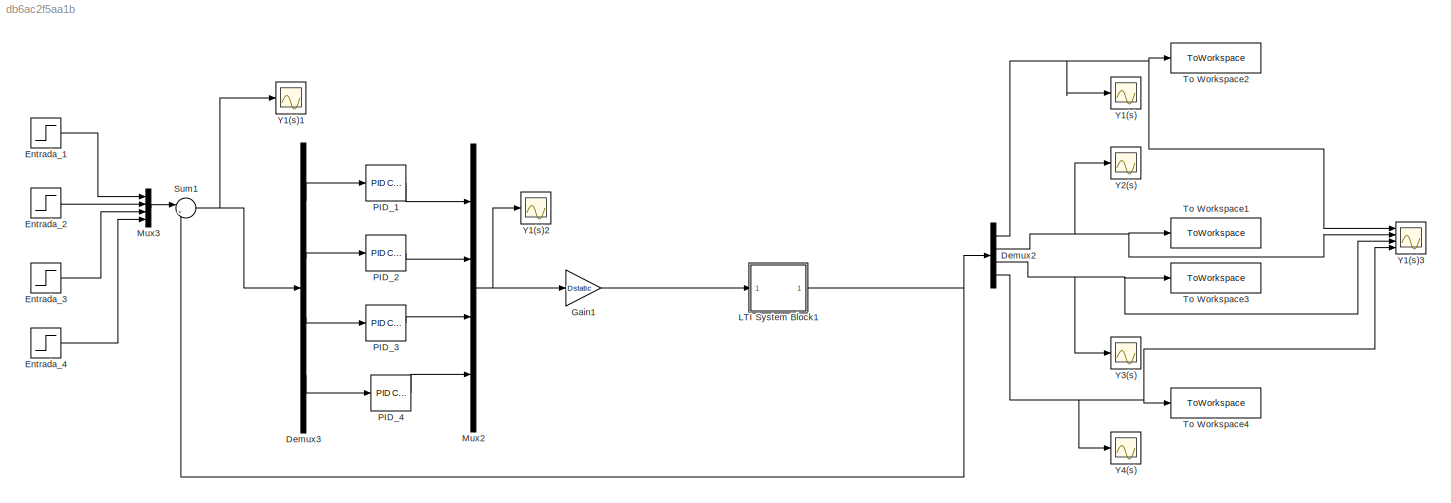
MODEL slx_db6ac2f5aa1b
KIND model
CONFIG AbsTol = auto
CONFIG EnableMultiTasking = off
CONFIG FixedStep = auto
CONFIG MaxStep = auto
CONFIG MinStep = auto
CONFIG RelTol = 1e-3
CONFIG SampleTimeConstraint = Unconstrained
CONFIG SolverName = ode45
CONFIG StartTime = 0.0
CONFIG StopTime = 1000
WORKSPACE source: mxarray member
WORKSPACE Gm: object (value not decoded)
BLOCK [Demux] Demux2
  Ports = [1, 4]
BLOCK [Demux] Demux3
  Ports = [1, 4]
BLOCK [Step] Entrada_1
  SampleTime = 0
BLOCK [Step] Entrada_2
  SampleTime = 0
BLOCK [Step] Entrada_3
  SampleTime = 0
BLOCK [Step] Entrada_4
  SampleTime = 0
BLOCK [Gain] Gain1
  Gain = Dstatic
  Multiplication = Matrix(K*u)
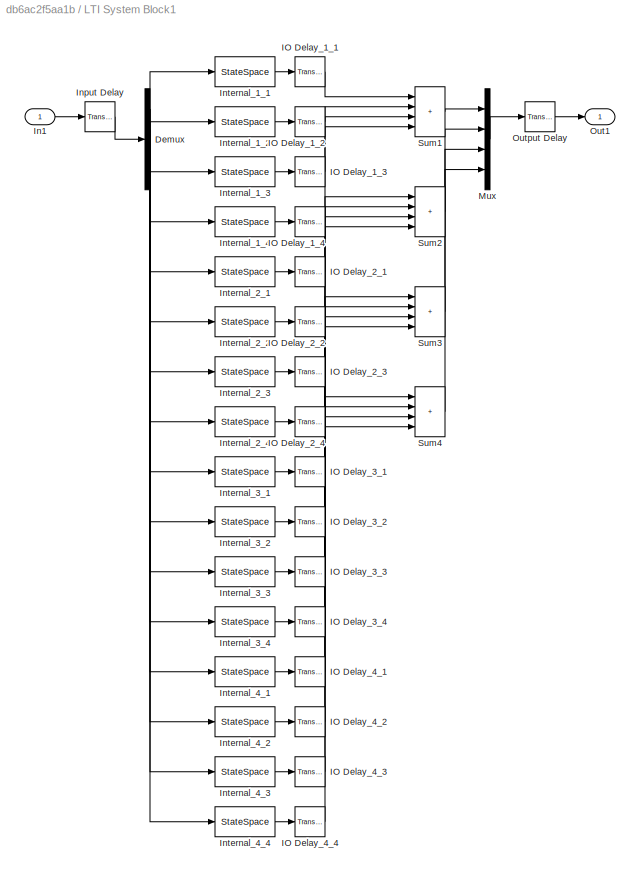
BLOCK [SubSystem] LTI System Block1
  AncestorBlock = cstblocks/LTI System
  BlockChoice = CSS
  Ports = [1, 1]
  RequestExecContextInheritance = off
BLOCK [Demux] LTI System Block1/Demux
  Ports = [1, 4]
BLOCK [Reference] LTI System Block1/IO Delay_1_1  REF=cstextras/Transport Delay  (lib defined in mdl_a5737024c95e)
(masked)
  Ports = [1, 1]
  SourceBlock = cstextras/Transport Delay\n(masked)
  SourceProductBaseCode = CT
  SourceType = Transport Delay (masked)
BLOCK [Reference] LTI System Block1/IO Delay_1_2  REF=cstextras/Transport Delay  (lib defined in mdl_a5737024c95e)
(masked)
  Ports = [1, 1]
  SourceBlock = cstextras/Transport Delay\n(masked)
  SourceProductBaseCode = CT
  SourceType = Transport Delay (masked)
BLOCK [Reference] LTI System Block1/IO Delay_1_3  REF=cstextras/Transport Delay  (lib defined in mdl_a5737024c95e)
(masked)
  Ports = [1, 1]
  SourceBlock = cstextras/Transport Delay\n(masked)
  SourceProductBaseCode = CT
  SourceType = Transport Delay (masked)
BLOCK [Reference] LTI System Block1/IO Delay_1_4  REF=cstextras/Transport Delay  (lib defined in mdl_a5737024c95e)
(masked)
  Ports = [1, 1]
  SourceBlock = cstextras/Transport Delay\n(masked)
  SourceProductBaseCode = CT
  SourceType = Transport Delay (masked)
BLOCK [Reference] LTI System Block1/IO Delay_2_1  REF=cstextras/Transport Delay  (lib defined in mdl_a5737024c95e)
(masked)
  Ports = [1, 1]
  SourceBlock = cstextras/Transport Delay\n(masked)
  SourceProductBaseCode = CT
  SourceType = Transport Delay (masked)
BLOCK [Reference] LTI System Block1/IO Delay_2_2  REF=cstextras/Transport Delay  (lib defined in mdl_a5737024c95e)
(masked)
  Ports = [1, 1]
  SourceBlock = cstextras/Transport Delay\n(masked)
  SourceProductBaseCode = CT
  SourceType = Transport Delay (masked)
BLOCK [Reference] LTI System Block1/IO Delay_2_3  REF=cstextras/Transport Delay  (lib defined in mdl_a5737024c95e)
(masked)
  Ports = [1, 1]
  SourceBlock = cstextras/Transport Delay\n(masked)
  SourceProductBaseCode = CT
  SourceType = Transport Delay (masked)
BLOCK [Reference] LTI System Block1/IO Delay_2_4  REF=cstextras/Transport Delay  (lib defined in mdl_a5737024c95e)
(masked)
  Ports = [1, 1]
  SourceBlock = cstextras/Transport Delay\n(masked)
  SourceProductBaseCode = CT
  SourceType = Transport Delay (masked)
BLOCK [Reference] LTI System Block1/IO Delay_3_1  REF=cstextras/Transport Delay  (lib defined in mdl_a5737024c95e)
(masked)
  Ports = [1, 1]
  SourceBlock = cstextras/Transport Delay\n(masked)
  SourceProductBaseCode = CT
  SourceType = Transport Delay (masked)
BLOCK [Reference] LTI System Block1/IO Delay_3_2  REF=cstextras/Transport Delay  (lib defined in mdl_a5737024c95e)
(masked)
  Ports = [1, 1]
  SourceBlock = cstextras/Transport Delay\n(masked)
  SourceProductBaseCode = CT
  SourceType = Transport Delay (masked)
BLOCK [Reference] LTI System Block1/IO Delay_3_3  REF=cstextras/Transport Delay  (lib defined in mdl_a5737024c95e)
(masked)
  Ports = [1, 1]
  SourceBlock = cstextras/Transport Delay\n(masked)
  SourceProductBaseCode = CT
  SourceType = Transport Delay (masked)
BLOCK [Reference] LTI System Block1/IO Delay_3_4  REF=cstextras/Transport Delay  (lib defined in mdl_a5737024c95e)
(masked)
  Ports = [1, 1]
  SourceBlock = cstextras/Transport Delay\n(masked)
  SourceProductBaseCode = CT
  SourceType = Transport Delay (masked)
BLOCK [Reference] LTI System Block1/IO Delay_4_1  REF=cstextras/Transport Delay  (lib defined in mdl_a5737024c95e)
(masked)
  Ports = [1, 1]
  SourceBlock = cstextras/Transport Delay\n(masked)
  SourceProductBaseCode = CT
  SourceType = Transport Delay (masked)
BLOCK [Reference] LTI System Block1/IO Delay_4_2  REF=cstextras/Transport Delay  (lib defined in mdl_a5737024c95e)
(masked)
  Ports = [1, 1]
  SourceBlock = cstextras/Transport Delay\n(masked)
  SourceProductBaseCode = CT
  SourceType = Transport Delay (masked)
BLOCK [Reference] LTI System Block1/IO Delay_4_3  REF=cstextras/Transport Delay  (lib defined in mdl_a5737024c95e)
(masked)
  Ports = [1, 1]
  SourceBlock = cstextras/Transport Delay\n(masked)
  SourceProductBaseCode = CT
  SourceType = Transport Delay (masked)
BLOCK [Reference] LTI System Block1/IO Delay_4_4  REF=cstextras/Transport Delay  (lib defined in mdl_a5737024c95e)
(masked)
  Ports = [1, 1]
  SourceBlock = cstextras/Transport Delay\n(masked)
  SourceProductBaseCode = CT
  SourceType = Transport Delay (masked)
BLOCK [Inport] LTI System Block1/In1
BLOCK [Reference] LTI System Block1/Input Delay  REF=cstextras/Transport Delay  (lib defined in mdl_a5737024c95e)
(masked)
  Ports = [1, 1]
  SourceBlock = cstextras/Transport Delay\n(masked)
  SourceProductBaseCode = CT
  SourceType = Transport Delay (masked)
BLOCK [StateSpace] LTI System Block1/Internal_1_1
  A = D(1,1).a
  B = D(1,1).b
  C = D(1,1).c
  D = D(1,1).d
  Ports = [1, 1]
BLOCK [StateSpace] LTI System Block1/Internal_1_2
  A = D(1,2).a
  B = D(1,2).b
  C = D(1,2).c
  D = D(1,2).d
  Ports = [1, 1]
BLOCK [StateSpace] LTI System Block1/Internal_1_3
  A = D(1,3).a
  B = D(1,3).b
  C = D(1,3).c
  D = D(1,3).d
  Ports = [1, 1]
BLOCK [StateSpace] LTI System Block1/Internal_1_4
  A = D(1,4).a
  B = D(1,4).b
  C = D(1,4).c
  D = D(1,4).d
  Ports = [1, 1]
BLOCK [StateSpace] LTI System Block1/Internal_2_1
  A = D(2,1).a
  B = D(2,1).b
  C = D(2,1).c
  D = D(2,1).d
  Ports = [1, 1]
BLOCK [StateSpace] LTI System Block1/Internal_2_2
  A = D(2,2).a
  B = D(2,2).b
  C = D(2,2).c
  D = D(2,2).d
  Ports = [1, 1]
BLOCK [StateSpace] LTI System Block1/Internal_2_3
  A = D(2,3).a
  B = D(2,3).b
  C = D(2,3).c
  D = D(2,3).d
  Ports = [1, 1]
BLOCK [StateSpace] LTI System Block1/Internal_2_4
  A = D(2,4).a
  B = D(2,4).b
  C = D(2,4).c
  D = D(2,4).d
  Ports = [1, 1]
BLOCK [StateSpace] LTI System Block1/Internal_3_1
  A = D(3,1).a
  B = D(3,1).b
  C = D(3,1).c
  D = D(3,1).d
  Ports = [1, 1]
BLOCK [StateSpace] LTI System Block1/Internal_3_2
  A = D(3,2).a
  B = D(3,2).b
  C = D(3,2).c
  D = D(3,2).d
  Ports = [1, 1]
BLOCK [StateSpace] LTI System Block1/Internal_3_3
  A = D(3,3).a
  B = D(3,3).b
  C = D(3,3).c
  D = D(3,3).d
  Ports = [1, 1]
BLOCK [StateSpace] LTI System Block1/Internal_3_4
  A = D(3,4).a
  B = D(3,4).b
  C = D(3,4).c
  D = D(3,4).d
  Ports = [1, 1]
BLOCK [StateSpace] LTI System Block1/Internal_4_1
  A = D(4,1).a
  B = D(4,1).b
  C = D(4,1).c
  D = D(4,1).d
  Ports = [1, 1]
BLOCK [StateSpace] LTI System Block1/Internal_4_2
  A = D(4,2).a
  B = D(4,2).b
  C = D(4,2).c
  D = D(4,2).d
  Ports = [1, 1]
BLOCK [StateSpace] LTI System Block1/Internal_4_3
  A = D(4,3).a
  B = D(4,3).b
  C = D(4,3).c
  D = D(4,3).d
  Ports = [1, 1]
BLOCK [StateSpace] LTI System Block1/Internal_4_4
  A = D(4,4).a
  B = D(4,4).b
  C = D(4,4).c
  D = D(4,4).d
  Ports = [1, 1]
BLOCK [Mux] LTI System Block1/Mux
  Ports = [4, 1]
BLOCK [Outport] LTI System Block1/Out1
  InitialOutput = 0
  VectorParamsAs1DForOutWhenUnconnected = off
BLOCK [Reference] LTI System Block1/Output Delay  REF=cstextras/Transport Delay  (lib defined in mdl_a5737024c95e)
(masked)
  Ports = [1, 1]
  SourceBlock = cstextras/Transport Delay\n(masked)
  SourceProductBaseCode = CT
  SourceType = Transport Delay (masked)
BLOCK [Sum] LTI System Block1/Sum1
  IconShape = rectangular
  Inputs = ++++
  Ports = [4, 1]
BLOCK [Sum] LTI System Block1/Sum2
  IconShape = rectangular
  Inputs = ++++
  Ports = [4, 1]
BLOCK [Sum] LTI System Block1/Sum3
  IconShape = rectangular
  Inputs = ++++
  Ports = [4, 1]
BLOCK [Sum] LTI System Block1/Sum4
  IconShape = rectangular
  Inputs = ++++
  Ports = [4, 1]
BLOCK [Mux] Mux2
  DisplayOption = bar
  Ports = [4, 1]
BLOCK [Mux] Mux3
  DisplayOption = bar
  Ports = [4, 1]
BLOCK [Reference] PID_1  REF=pid_lib/PID Controller
  Ports = [1, 1]
  SourceBlock = pid_lib/PID Controller
  SourceProductBaseCode = SL
  SourceType = PID 1dof
BLOCK [Reference] PID_2  REF=pid_lib/PID Controller
  Ports = [1, 1]
  SourceBlock = pid_lib/PID Controller
  SourceProductBaseCode = SL
  SourceType = PID 1dof
BLOCK [Reference] PID_3  REF=pid_lib/PID Controller
  Ports = [1, 1]
  SourceBlock = pid_lib/PID Controller
  SourceProductBaseCode = SL
  SourceType = PID 1dof
BLOCK [Reference] PID_4  REF=pid_lib/PID Controller
  Ports = [1, 1]
  SourceBlock = pid_lib/PID Controller
  SourceProductBaseCode = SL
  SourceType = PID 1dof
BLOCK [Sum] Sum1
  Inputs = |+-
  Ports = [2, 1]
BLOCK [ToWorkspace] To Workspace1
  FixptAsFi = on
  MaxDataPoints = inf
  Ports = [1]
  SampleTime = -1
  SaveFormat = Timeseries
  VariableName = Y2
BLOCK [ToWorkspace] To Workspace2
  FixptAsFi = on
  MaxDataPoints = inf
  Ports = [1]
  SampleTime = -1
  SaveFormat = Timeseries
  VariableName = Y1
BLOCK [ToWorkspace] To Workspace3
  FixptAsFi = on
  MaxDataPoints = inf
  Ports = [1]
  SampleTime = -1
  SaveFormat = Timeseries
  VariableName = Y3
BLOCK [ToWorkspace] To Workspace4
  FixptAsFi = on
  MaxDataPoints = inf
  Ports = [1]
  SampleTime = -1
  SaveFormat = Timeseries
  VariableName = Y4
BLOCK [Scope] Y1(s)
  Floating = off
  NumInputPorts = 1
  Ports = [1]
  ScopeSpecificationString = Simulink.scopes.TimeScopeBlockCfg('CurrentConfiguration', extmgr.ConfigurationSet(extmgr.Configuration('Core','General UI',true),extmgr.Configuration('Core','Source UI',true),extmgr.Configuration('Sources','WiredSimulink',true),extmgr.Configuration('Visuals','Time Domain',true,'SerializedDisplays',{struct('MinYLimReal','-0.23092','MaxYLimReal','1.83725','YLabelReal','','MinYLimMag','0.00000','MaxY...<+1357ch>
BLOCK [Scope] Y1(s)1
  Floating = off
  NumInputPorts = 1
  Ports = [1]
  ScopeSpecificationString = Simulink.scopes.TimeScopeBlockCfg('CurrentConfiguration', extmgr.ConfigurationSet(extmgr.Configuration('Core','General UI',true),extmgr.Configuration('Core','Source UI',true),extmgr.Configuration('Sources','WiredSimulink',true,'DataLoggingVariableName','ScopeData1'),extmgr.Configuration('Visuals','Time Domain',true,'SerializedDisplays',{struct('MinYLimReal','-0.83725','MaxYLimReal','1.23092','YLab...<+1423ch>
BLOCK [Scope] Y1(s)2
  Floating = off
  NumInputPorts = 1
  Ports = [1]
  ScopeSpecificationString = Simulink.scopes.TimeScopeBlockCfg('CurrentConfiguration', extmgr.ConfigurationSet(extmgr.Configuration('Core','General UI',true),extmgr.Configuration('Core','Source UI',true),extmgr.Configuration('Sources','WiredSimulink',true,'DataLoggingVariableName','ScopeData2'),extmgr.Configuration('Visuals','Time Domain',true,'SerializedDisplays',{struct('MinYLimReal','-1.56748','MaxYLimReal','7.41072','YLab...<+1419ch>
BLOCK [Scope] Y1(s)3
  Floating = off
  NumInputPorts = 4
  Ports = [4]
  ScopeSpecificationString = Simulink.scopes.TimeScopeBlockCfg('CurrentConfiguration', extmgr.ConfigurationSet(extmgr.Configuration('Core','General UI',true),extmgr.Configuration('Core','Source UI',true),extmgr.Configuration('Sources','WiredSimulink',true,'DataLoggingVariableName','ScopeData1'),extmgr.Configuration('Visuals','Time Domain',true,'SerializedDisplays',{struct('MinYLimReal','-0.23092','MaxYLimReal','1.83725','YLab...<+1430ch>
BLOCK [Scope] Y2(s)
  Floating = off
  NumInputPorts = 1
  Ports = [1]
  ScopeSpecificationString = Simulink.scopes.TimeScopeBlockCfg('CurrentConfiguration', extmgr.ConfigurationSet(extmgr.Configuration('Core','General UI',true),extmgr.Configuration('Core','Source UI',true),extmgr.Configuration('Sources','WiredSimulink',true,'DataLoggingVariableName','ScopeData1'),extmgr.Configuration('Visuals','Time Domain',true,'SerializedDisplays',{struct('MinYLimReal','-0.12468','MaxYLimReal','1.12213','YLab...<+1367ch>
BLOCK [Scope] Y3(s)
  Floating = off
  NumInputPorts = 1
  Ports = [1]
  ScopeSpecificationString = Simulink.scopes.TimeScopeBlockCfg('CurrentConfiguration', extmgr.ConfigurationSet(extmgr.Configuration('Core','General UI',true),extmgr.Configuration('Core','Source UI',true),extmgr.Configuration('Sources','WiredSimulink',true,'DataLoggingVariableName','ScopeData2'),extmgr.Configuration('Visuals','Time Domain',true,'SerializedDisplays',{struct('MinYLimReal','-0.15979','MaxYLimReal','1.41906','YLab...<+1367ch>
BLOCK [Scope] Y4(s)
  Floating = off
  NumInputPorts = 1
  Ports = [1]
  ScopeSpecificationString = Simulink.scopes.TimeScopeBlockCfg('CurrentConfiguration', extmgr.ConfigurationSet(extmgr.Configuration('Core','General UI',true),extmgr.Configuration('Core','Source UI',true),extmgr.Configuration('Sources','WiredSimulink',true,'DataLoggingVariableName','ScopeData3'),extmgr.Configuration('Visuals','Time Domain',true,'SerializedDisplays',{struct('MinYLimReal','-0.16169','MaxYLimReal','1.45518','YLab...<+1398ch>
NET Demux2:1 -> To Workspace2:1, Y1(s)3:1, Y1(s):1
NET Demux2:2 -> To Workspace1:1, Y1(s)3:2, Y2(s):1
NET Demux2:3 -> To Workspace3:1, Y1(s)3:3, Y3(s):1
NET Demux2:4 -> To Workspace4:1, Y1(s)3:4, Y4(s):1
LINE Demux3:1 -> PID_1:1
LINE Demux3:2 -> PID_2:1
LINE Demux3:3 -> PID_3:1
LINE Demux3:4 -> PID_4:1
LINE Entrada_1:1 -> Mux3:1
LINE Entrada_2:1 -> Mux3:2
LINE Entrada_3:1 -> Mux3:3
LINE Entrada_4:1 -> Mux3:4
LINE Gain1:1 -> LTI System Block1:1
NET LTI System Block1:1 -> Demux2:1, Sum1:2
NET Mux2:1 -> Gain1:1, Y1(s)2:1
LINE Mux3:1 -> Sum1:1
LINE PID_1:1 -> Mux2:1
LINE PID_2:1 -> Mux2:2
LINE PID_3:1 -> Mux2:3
LINE PID_4:1 -> Mux2:4
NET Sum1:1 -> Demux3:1, Y1(s)1:1
note: NET lines group one-source signal fan-out (src -> all destinations, sorted); 1:1 wires keep LINE
